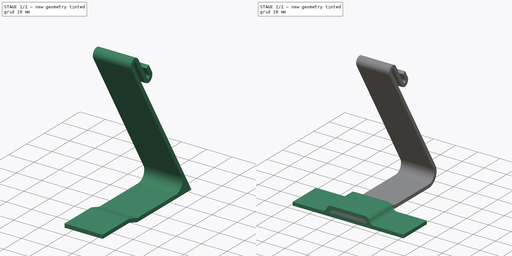
[diagram: build sequence overview — one tinted view per stage of 2, left to right]
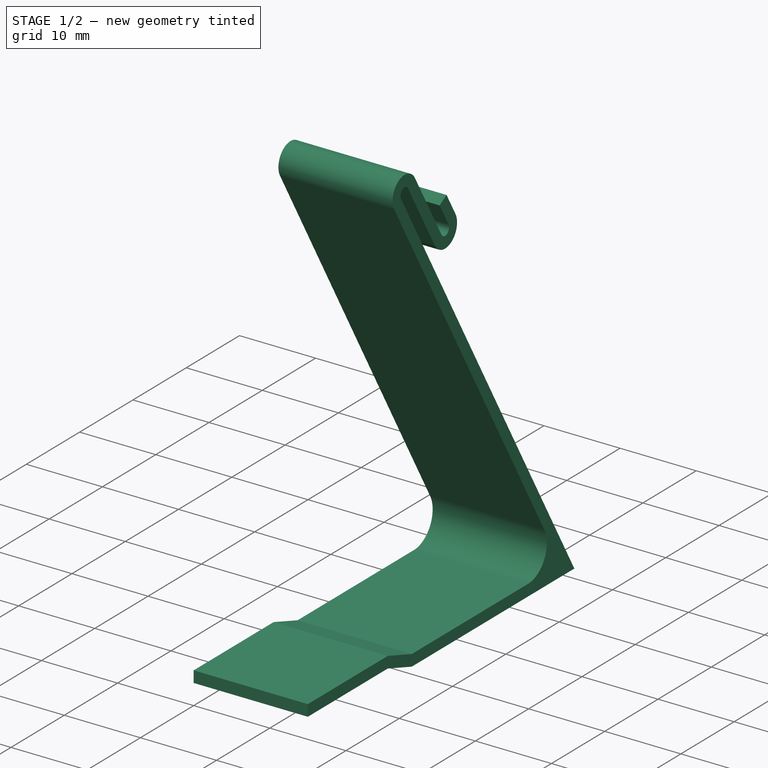
[diagram: stage 1 of 2 — iso view after this stage's code; geometry added in this stage tinted green]
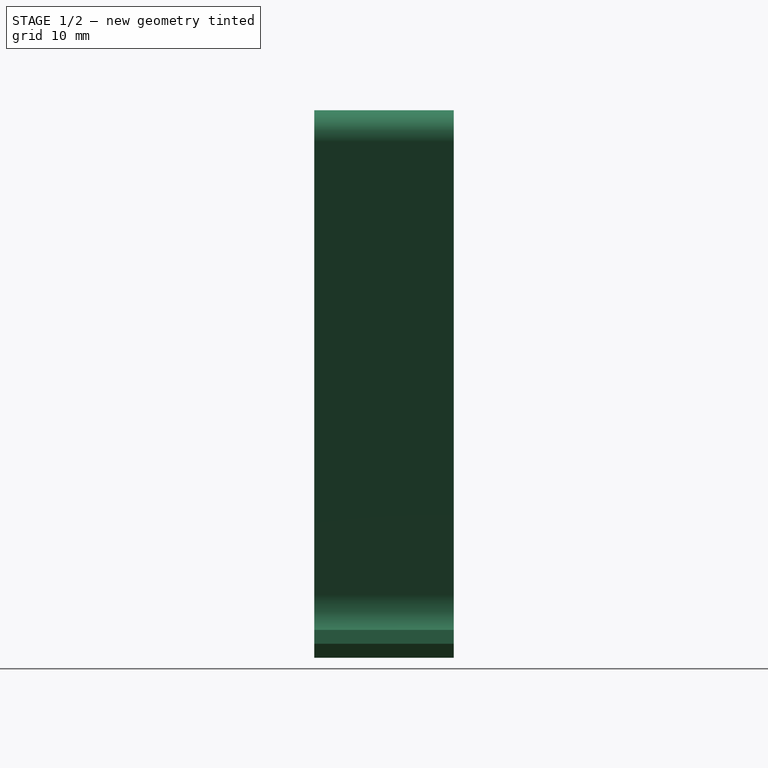
[diagram: stage 1 of 2 — front view after this stage's code; geometry added in this stage tinted green]
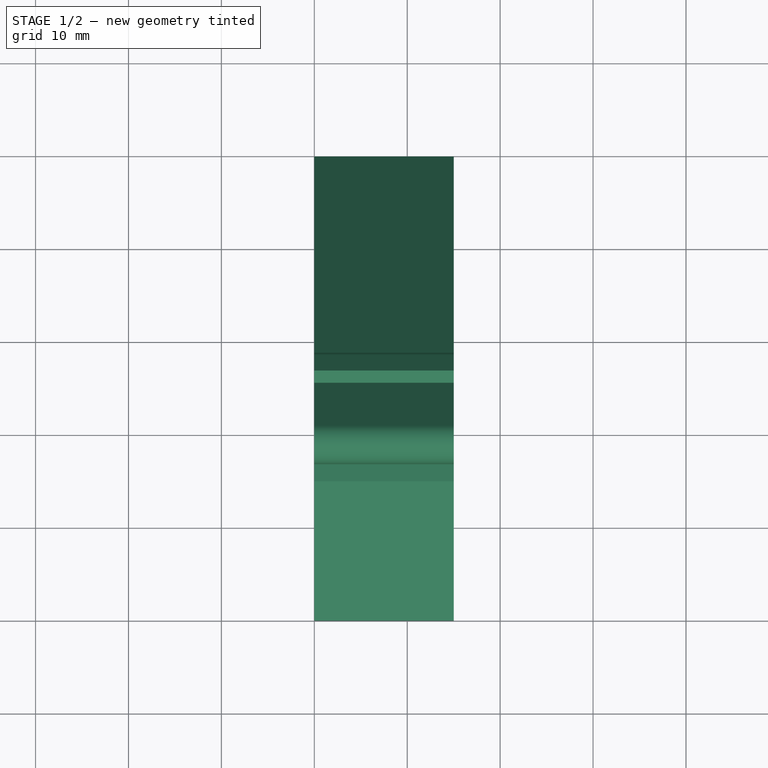
[diagram: stage 1 of 2 — top view after this stage's code; geometry added in this stage tinted green]
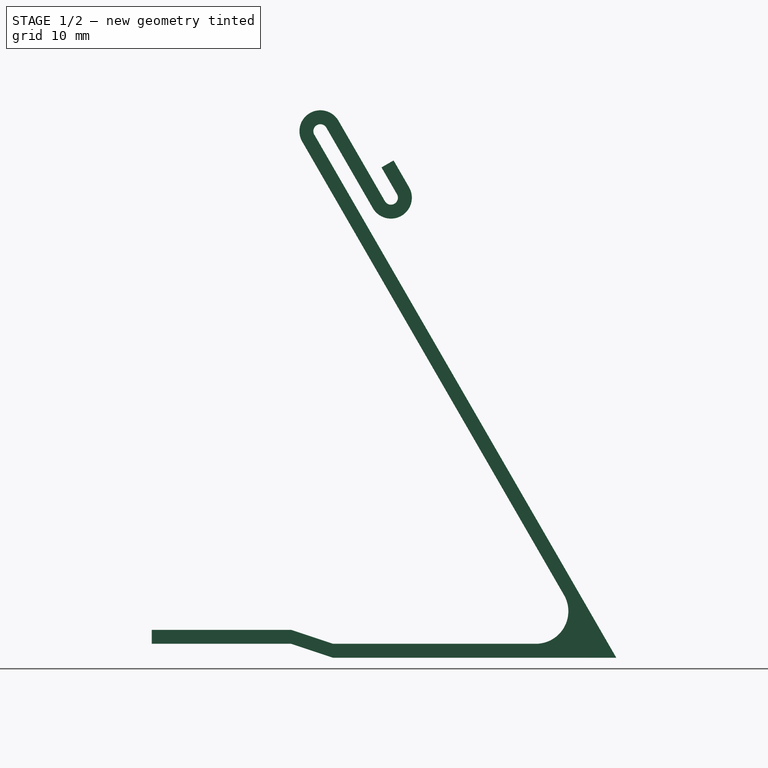
[diagram: stage 1 of 2 — right view after this stage's code; geometry added in this stage tinted green]
FCSTD DOCUMENT  (FreeCAD 0.20R29603 (Git))
Label: Sheriff-Star-Holder
License: All rights reserved
LicenseURL: http://en.wikipedia.org/wiki/All_rights_reserved
objects: Sketcher::SketchObject×2, PartDesign::Pad×2, PartDesign::Body×2, PartDesign::Fillet×2, Spreadsheet::Sheet×1
note: 12 computed .brp shape members not serialized (recipe doc carries the construction recipe); baked Part::Feature solids carry a one-line shape summary decoded from their .brp

FEATURE [Spreadsheet::Sheet] Spreadsheet  label="Params"
  cells = A1=Description; B1=Value; A2=holderLength (hanging point to ground in angled direction); B2(holderLength)=50; A3=overHang on top; B3(overhang)=10; A4=Hanger inner radius; B4(hangerRad)==3 / 4; A5=Stand lower Radius; B5(lowerRad)=5; A6=Thinckness; B6(thickness)=1.5; A7=Width of Hanger; B7(width)=15; A8=Angle of holder; B8(holderAngle)=60
FEATURE [Sketcher::SketchObject] Sketch
  FullyConstrained = true
  MapMode = 5
  Placement = pos=(0,0,0) rot=(0.57735,0.57735,0.57735;2.0944rad)
  Support = -> [YZ_Plane]
  expr: Constraints[12] = <<Params>>.thickness * 3
  expr: Constraints[19] = <<Params>>.holderLength
  expr: Constraints[20] = 1.1 * <<Params>>.holderLength + <<Params>>.overhang
  expr: Constraints[21] = <<Params>>.holderAngle
  expr: Constraints[29] = <<Params>>.thickness
  expr: Constraints[30] = <<Params>>.hangerRad
  expr: Constraints[38] = <<Params>>.overhang
  expr: Constraints[44] = <<Params>>.overhang / 3
  expr: Constraints[7] = <<Params>>.thickness
  expr: Constraints[8] = <<Params>>.thickness
  expr: Constraints[9] = <<Params>>.width
  sketch-geometry (20):
    g0: LineSegment StartX=0 StartY=1.5 StartZ=0 EndX=15 EndY=1.5 EndZ=0
    g1: LineSegment StartX=0 StartY=1.5 StartZ=0 EndX=0 EndY=3 EndZ=0
    g2: LineSegment StartX=0 StartY=3 StartZ=0 EndX=15 EndY=3 EndZ=0
    g3: LineSegment StartX=15 StartY=1.5 StartZ=0 EndX=19.5 EndY=0 EndZ=0
    g4: LineSegment StartX=15 StartY=3 StartZ=0 EndX=19.5 EndY=1.5 EndZ=0
    g5: LineSegment StartX=19.5 StartY=0 StartZ=0 EndX=50 EndY=0 EndZ=0
    g6: LineSegment StartX=50 StartY=0 StartZ=0 EndX=17.5 EndY=56.2917 EndZ=0
    g7: LineSegment StartX=19.5 StartY=1.5 StartZ=0 EndX=47.4019 EndY=1.5 EndZ=0
    g8: LineSegment StartX=47.4019 StartY=1.5 StartZ=0 EndX=16.201 EndY=55.5417 EndZ=0
    g9: LineSegment StartX=16.201 StartY=55.5417 StartZ=0 EndX=17.5 EndY=56.2917 EndZ=0
    g10: ArcOfCircle CenterX=18.1495 CenterY=56.6667 CenterZ=0 NormalX=0 NormalY=0 NormalZ=1 AngleXU=0 Radius=0.75 StartAngle=0.523599 EndAngle=3.66519
    g11: LineSegment StartX=18.799 StartY=57.0417 StartZ=0 EndX=23.799 EndY=48.3814 EndZ=0
    g12: ArcOfCircle CenterX=18.1495 CenterY=56.6667 CenterZ=0 NormalX=0 NormalY=0 NormalZ=1 AngleXU=0 Radius=2.25 StartAngle=0.523599 EndAngle=3.66519
    g13: LineSegment StartX=20.0981 StartY=57.7917 StartZ=0 EndX=25.0981 EndY=49.1314 EndZ=0
    g14: LineSegment StartX=23.799 StartY=48.3814 StartZ=0 EndX=25.0981 EndY=49.1314 EndZ=0
    g15: ArcOfCircle CenterX=25.7476 CenterY=49.5064 CenterZ=0 NormalX=0 NormalY=0 NormalZ=1 AngleXU=0 Radius=0.75 StartAngle=3.66519 EndAngle=6.80678
    g16: LineSegment StartX=26.3971 StartY=49.8814 StartZ=0 EndX=24.7304 EndY=52.7681 EndZ=0
    g17: ArcOfCircle CenterX=25.7476 CenterY=49.5064 CenterZ=0 NormalX=0 NormalY=0 NormalZ=1 AngleXU=0 Radius=2.25 StartAngle=3.66519 EndAngle=6.80678
    g18: LineSegment StartX=27.6962 StartY=50.6314 StartZ=0 EndX=26.0295 EndY=53.5181 EndZ=0
    g19: LineSegment StartX=26.0295 StartY=53.5181 StartZ=0 EndX=24.7304 EndY=52.7681 EndZ=0
  constraints (54):
    c: PointOnObject(g0,g-2)
    c: Horizontal(g0)
    c: Coincident(g1,g0)
    c: PointOnObject(g1,g-2)
    c: Coincident(g2,g1)
    c: Horizontal(g2)
    c: Vertical(g2,g0)
    c: Distance(g-1,g0) = 1.5
    c: Distance(g0,g1) = 1.5
    c: Distance(g1,g2) = 15
    c: Coincident(g3,g0)
    c: PointOnObject(g3,g-1)
    c: DistanceX(g0,g3) = 4.5
    c: Coincident(g4,g2)
    c: Vertical(g4,g3)
    c: Parallel(g4,g3)
    c: Coincident(g5,g3)
    c: PointOnObject(g5,g-1)
    c: Coincident(g6,g5)
    c: DistanceX(g-1,g5) = 50
    c: Distance(g5,g6) = 65
    c: Angle(g6,g5) = 1.0472
    c: Coincident(g7,g4)
    c: Horizontal(g7)
    c: Coincident(g8,g7)
    c: Parallel(g8,g6)
    c: Coincident(g9,g8)
    c: Coincident(g9,g6)
    c: Perpendicular(g8,g9)
    c: Distance(g6,g8) = 1.5
    c: Radius(g10) = 0.75
    c: Parallel(g11,g6)
    c: Tangent(g10,g6) = 1.5708
    c: Tangent(g10,g11) = 1.5708
    c: Coincident(g12,g10)
    c: Parallel(g13,g6)
    c: Coincident(g12,g8)
    c: Tangent(g12,g13) = 1.5708
    c: Distance(g12,g13) = 10
    c: Coincident(g14,g11)
    c: Coincident(g14,g13)
    c: Perpendicular(g14,g11)
    c: Equal(g15,g10)
    c: Parallel(g16,g13)
    c: Distance(g16,g16) = 3.33333
    c: Tangent(g15,g16) = -1.5708
    c: Tangent(g15,g13) = -1.5708
    c: Coincident(g17,g15)
    c: Coincident(g19,g18)
    c: Coincident(g19,g16)
    c: Perpendicular(g16,g19)
    c: Parallel(g18,g6)
    c: Coincident(g17,g11)
    c: Tangent(g17,g18) = -1.5708
FEATURE [PartDesign::Pad] Pad
  Direction = (1,-2e-16,3e-16)
  Length = 15
  Length2 = 100
  Placement = pos=(0,0,0) rot=(0.57735,0.57735,0.57735;2.0944rad)
  Profile = -> Sketch
  Type = 0
  expr: Length = <<Params>>.width
FEATURE [PartDesign::Body] Body001  label="BodyCross"
  Group = -> [Sketch001,Pad001]
  Origin = -> Origin001
  Tip = -> Pad001
FEATURE [PartDesign::Fillet] Fillet
  Base = -> Pad [Edge41]
  BaseFeature = -> Pad
  Placement = pos=(0,0,0) rot=(0.57735,0.57735,0.57735;2.0944rad)
  Radius = 3.5
  SupportTransform = false
  UseAllEdges = false
  expr: Radius = <<Params>>.lowerRad - <<Params>>.thickness
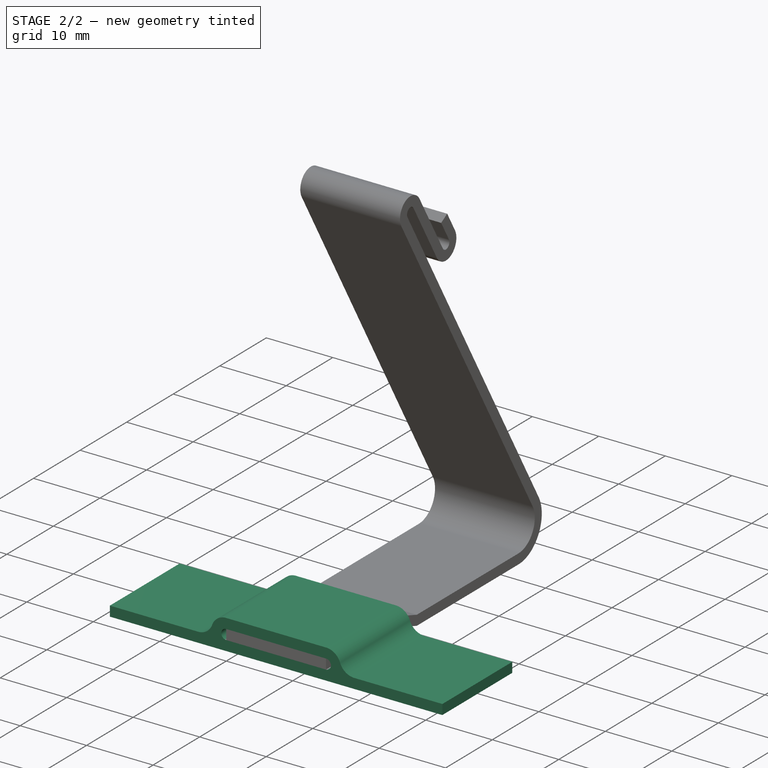
[diagram: stage 2 of 2 — iso view after this stage's code; geometry added in this stage tinted green]
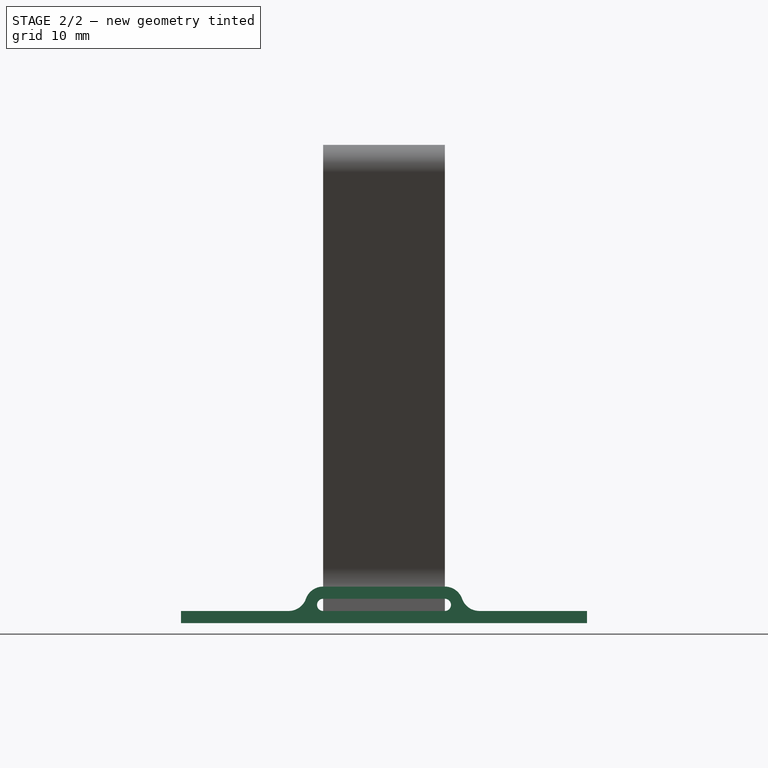
[diagram: stage 2 of 2 — front view after this stage's code; geometry added in this stage tinted green]
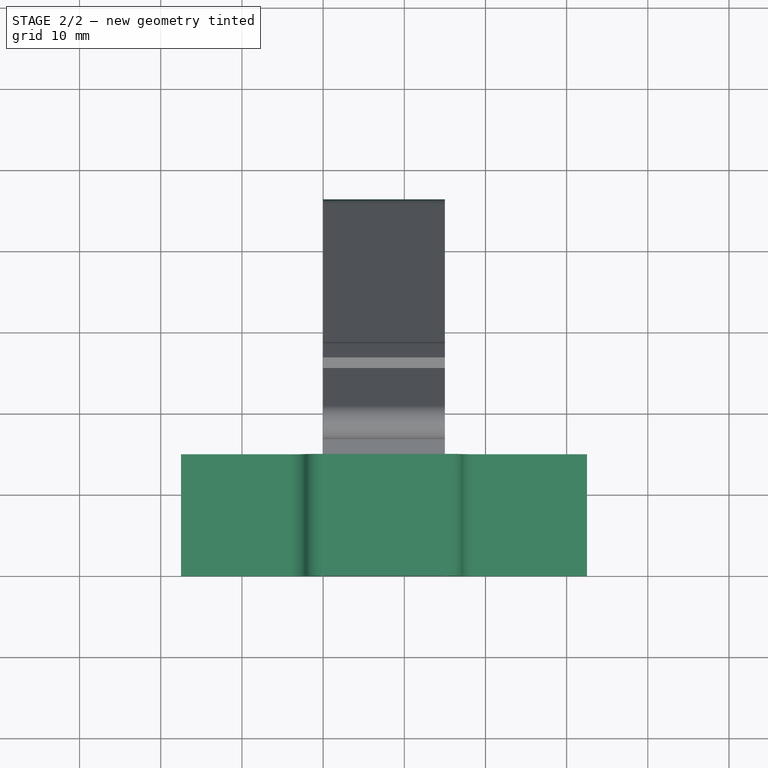
[diagram: stage 2 of 2 — top view after this stage's code; geometry added in this stage tinted green]
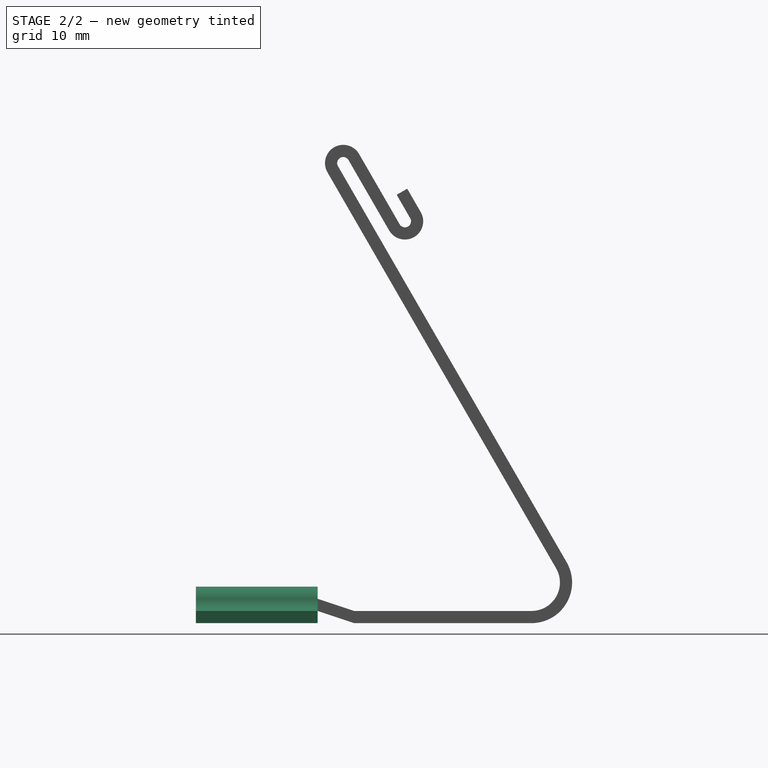
[diagram: stage 2 of 2 — right view after this stage's code; geometry added in this stage tinted green]
FEATURE [Sketcher::SketchObject] Sketch001
  FullyConstrained = true
  MapMode = 5
  Placement = pos=(0,0,0) rot=(1,0,0;1.5708rad)
  Support = -> [XZ_Plane001]
  expr: Constraints[10] = <<Params>>.thickness
  expr: Constraints[11] = <<Params>>.thickness
  expr: Constraints[21] = <<Params>>.thickness
  expr: Constraints[27] = <<Params>>.thickness
  expr: Constraints[30] = <<Params>>.holderLength
  expr: Constraints[8] = <<Params>>.width
  expr: Constraints[9] = <<Params>>.thickness
  sketch-geometry (14):
    g0: LineSegment StartX=-17.5 StartY=0 StartZ=0 EndX=32.5 EndY=0 EndZ=0
    g1: LineSegment StartX=32.5 StartY=0 StartZ=0 EndX=32.5 EndY=1.5 EndZ=0
    g2: LineSegment StartX=32.5 StartY=1.5 StartZ=0 EndX=19.2426 EndY=1.5 EndZ=0
    g3: LineSegment StartX=1e-16 StartY=4.5 StartZ=0 EndX=15 EndY=4.5 EndZ=0
    g4: LineSegment StartX=-1e-16 StartY=1.5 StartZ=0 EndX=15 EndY=1.5 EndZ=0
    g5: LineSegment StartX=15 StartY=3 StartZ=0 EndX=0 EndY=3 EndZ=0
    g6: ArcOfCircle CenterX=15 CenterY=2.25 CenterZ=0 NormalX=0 NormalY=0 NormalZ=1 AngleXU=0 Radius=0.75 StartAngle=4.71239 EndAngle=7.85398
    g7: ArcOfCircle CenterX=0 CenterY=2.25 CenterZ=0 NormalX=0 NormalY=0 NormalZ=1 AngleXU=0 Radius=0.75 StartAngle=1.5708 EndAngle=4.71239
    g8: ArcOfCircle CenterX=0 CenterY=2.25 CenterZ=0 NormalX=0 NormalY=0 NormalZ=1 AngleXU=0 Radius=2.25 StartAngle=1.5708 EndAngle=2.80176
    g9: ArcOfCircle CenterX=15 CenterY=2.25 CenterZ=0 NormalX=0 NormalY=0 NormalZ=1 AngleXU=0 Radius=2.25 StartAngle=0.339837 EndAngle=1.5708
    g10: LineSegment StartX=-17.5 StartY=0 StartZ=0 EndX=-17.5 EndY=1.5 EndZ=0
    g11: LineSegment StartX=-17.5 StartY=1.5 StartZ=0 EndX=-4.24264 EndY=1.5 EndZ=0
    g12: ArcOfCircle CenterX=-4.24264 CenterY=3.75 CenterZ=0 NormalX=0 NormalY=0 NormalZ=1 AngleXU=0 Radius=2.25 StartAngle=4.71239 EndAngle=5.94335
    g13: ArcOfCircle CenterX=19.2426 CenterY=3.75 CenterZ=0 NormalX=0 NormalY=0 NormalZ=1 AngleXU=0 Radius=2.25 StartAngle=3.48143 EndAngle=4.71239
  constraints (37):
    c: PointOnObject(g0,g-1)
    c: PointOnObject(g0,g-1)
    c: Horizontal(g2)
    c: PointOnObject(g3,g-2)
    c: Horizontal(g3)
    c: PointOnObject(g5,g-2)
    c: PointOnObject(g4,g-2)
    c: Horizontal(g4)
    c: DistanceX(g4,g4) = 15
    c: DistanceY(g-1,g4) = 1.5
    c: DistanceY(g4,g5) = 1.5
    c: DistanceY(g5,g3) = 1.5
    c: Tangent(g6,g4) = -1.5708
    c: Tangent(g6,g5) = -1.5708
    c: Tangent(g7,g5) = -1.5708
    c: Tangent(g7,g4) = -1.5708
    c: Coincident(g1,g2)
    c: Vertical(g1)
    c: Coincident(g8,g7)
    c: Coincident(g9,g6)
    c: Coincident(g1,g0)
    c: DistanceY(g1,g1) = 1.5
    c: Coincident(g10,g0)
    c: Vertical(g10)
    c: Coincident(g11,g10)
    c: Horizontal(g11)
    c: Equal(g12,g8)
    c: DistanceY(g10,g10) = 1.5
    c: Equal(g11,g2)
    c: Equal(g9,g13)
    c: DistanceX(g0,g0) = 50
    c: Tangent(g12,g11) = -1.5708
    c: Coincident(g8,g3)
    c: Tangent(g8,g12) = 1.5708
    c: Tangent(g13,g2) = 1.5708
    c: Tangent(g9,g3) = 1.5708
    c: Tangent(g9,g13) = 1.5708
FEATURE [PartDesign::Pad] Pad001
  Direction = (0,-1,-2e-16)
  Length = 15
  Length2 = 100
  Placement = pos=(0,0,0) rot=(1,0,0;1.5708rad)
  Profile = -> Sketch001
  Reversed = true
  Type = 0
  expr: Length = <<Params>>.width
FEATURE [PartDesign::Fillet] Fillet001
  Base = -> Fillet [Edge55]
  BaseFeature = -> Fillet
  Placement = pos=(0,0,0) rot=(0.57735,0.57735,0.57735;2.0944rad)
  Radius = 5
  SupportTransform = false
  UseAllEdges = false
  expr: Radius = <<Params>>.lowerRad
FEATURE [PartDesign::Body] Body
  Group = -> [Sketch,Pad,Fillet,Fillet001]
  Origin = -> Origin
  Tip = -> Fillet001
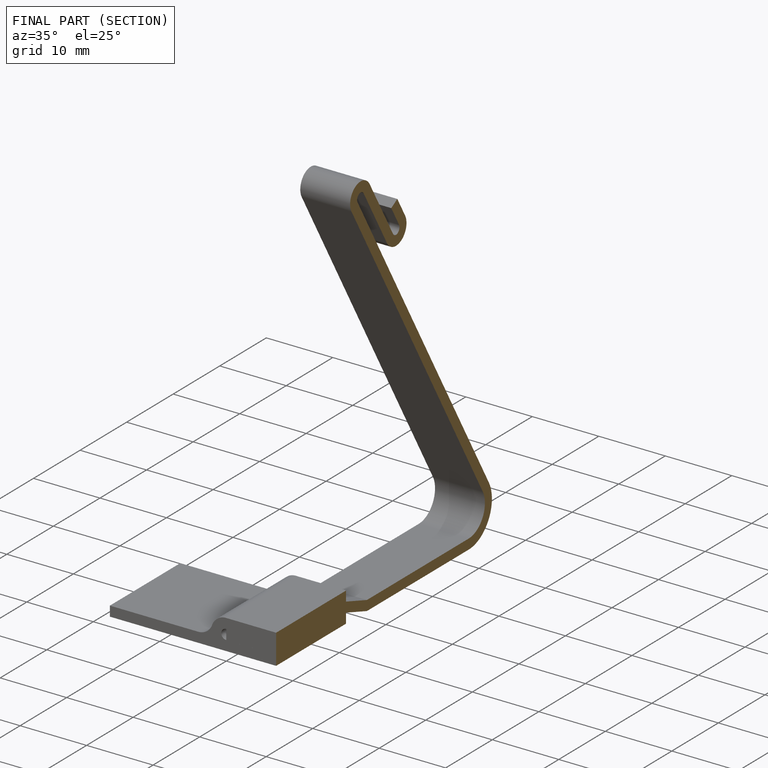
[diagram: finished part — half-section view (interior)]
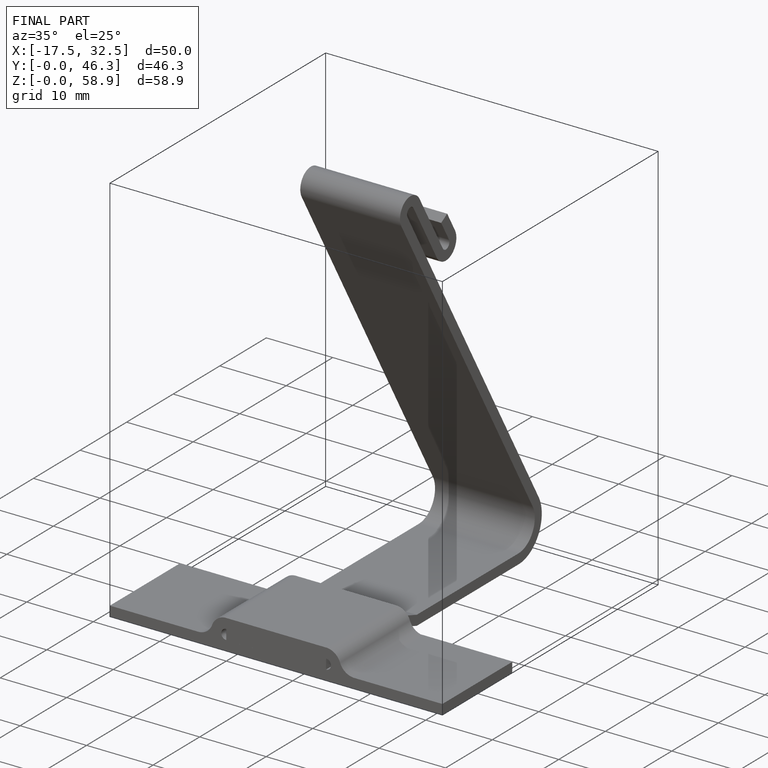
[diagram: finished part — iso view with bounding-box wireframe]
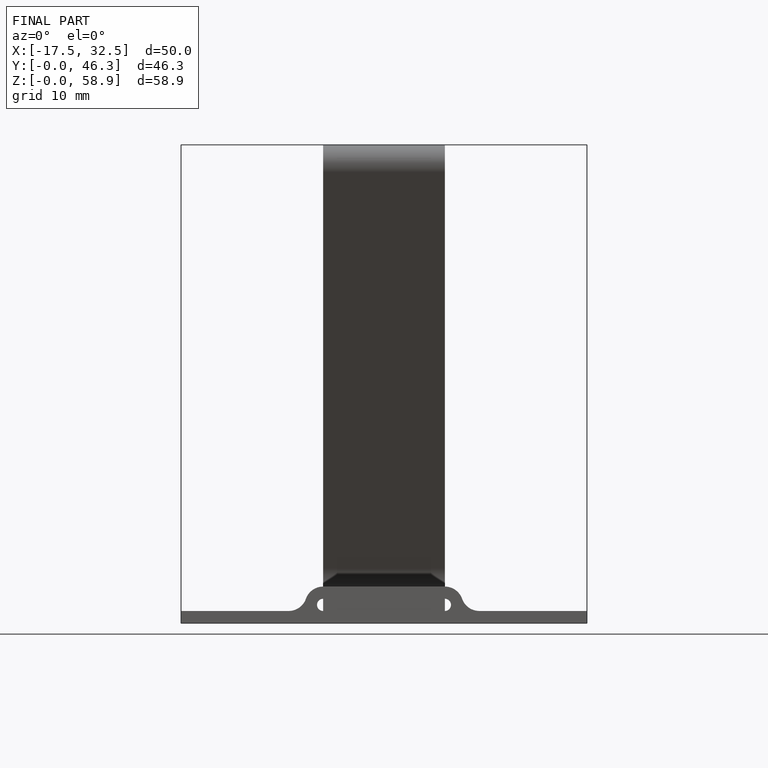
[diagram: finished part — front view with bounding-box wireframe]
